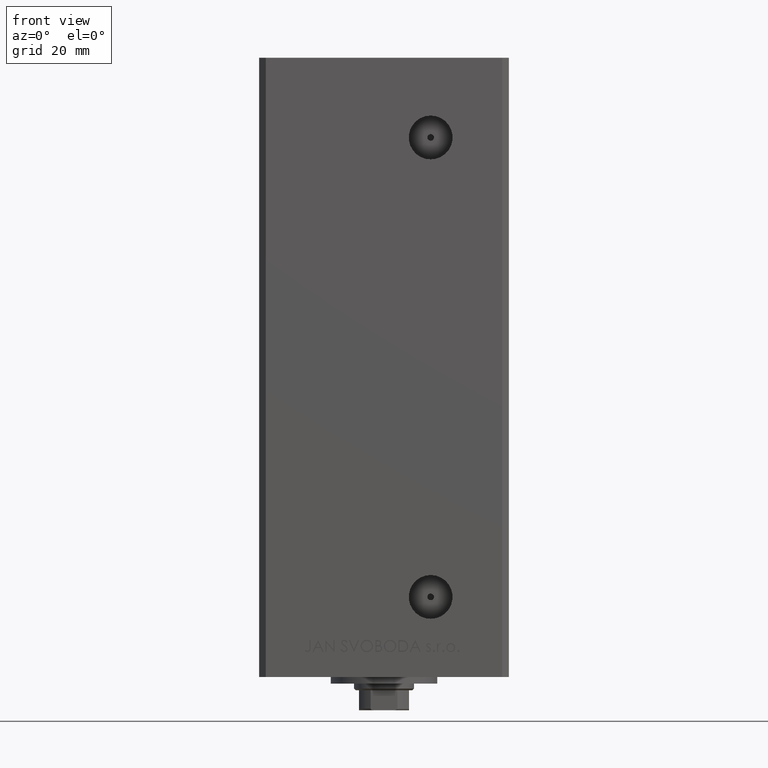
[diagram: clean part render]
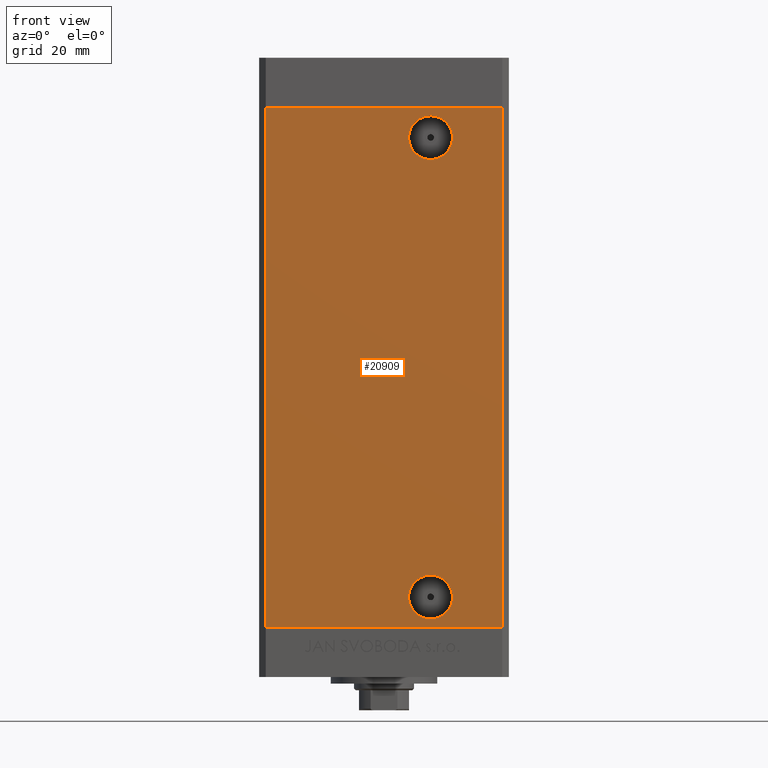
[diagram: same view with one face highlighted and labeled with its STEP entity id]
A machine part, front view. The second image highlights one B-rep face of the part: STEP entity #20909.
In plain terms, the highlighted planar face has unit normal (0, 1, 0).
Its self-contained STEP definition (entity closure, byte-faithful):
#135 = ORIENTED_EDGE ( 'NONE', *, *, #27253, .F. ) ;
#343 = EDGE_CURVE ( 'NONE', #30749, #41385, #29557, .T. ) ;
#912 = EDGE_LOOP ( 'NONE', ( #41120, #135 ) ) ;
#1077 = DIRECTION ( 'NONE',  ( -0.000000000000000000, 1.000000000000000000, -0.000000000000000000 ) ) ;
#1593 = VECTOR ( 'NONE', #24459, 1000.000000000000000 ) ;
#3749 = CARTESIAN_POINT ( 'NONE',  ( 13.99999999999999112, -32.50000000000000000, 9.000000000000007105 ) ) ;
#3975 = VECTOR ( 'NONE', #26338, 1000.000000000000000 ) ;
#4154 = DIRECTION ( 'NONE',  ( 0.000000000000000000, 0.000000000000000000, -1.000000000000000000 ) ) ;
#4648 = DIRECTION ( 'NONE',  ( 0.000000000000000000, -1.000000000000000000, 0.000000000000000000 ) ) ;
#6954 = AXIS2_PLACEMENT_3D ( 'NONE', #23757, #12418, #15191 ) ;
#7388 = EDGE_CURVE ( 'NONE', #32169, #26074, #32991, .T. ) ;
#8716 = ORIENTED_EDGE ( 'NONE', *, *, #343, .T. ) ;
#10592 = FACE_OUTER_BOUND ( 'NONE', #29655, .T. ) ;
#10918 = AXIS2_PLACEMENT_3D ( 'NONE', #20236, #4648, #4154 ) ;
#10981 = LINE ( 'NONE', #29873, #3975 ) ;
#11011 = DIRECTION ( 'NONE',  ( 1.000000000000000000, 0.000000000000000000, 0.000000000000000000 ) ) ;
#11515 = DIRECTION ( 'NONE',  ( 0.000000000000000000, 0.000000000000000000, -1.000000000000000000 ) ) ;
#11721 = CIRCLE ( 'NONE', #27784, 6.579999999999998295 ) ;
#12418 = DIRECTION ( 'NONE',  ( -0.000000000000000000, 1.000000000000000000, -0.000000000000000000 ) ) ;
#12841 = DIRECTION ( 'NONE',  ( 0.000000000000000000, 0.000000000000000000, -1.000000000000000000 ) ) ;
#13933 = CARTESIAN_POINT ( 'NONE',  ( -35.49999999999999289, -32.50000000000000000, 156.0000000000000000 ) ) ;
#14204 = ORIENTED_EDGE ( 'NONE', *, *, #7388, .F. ) ;
#14360 = CARTESIAN_POINT ( 'NONE',  ( -35.49999999999999289, -32.50000000000000000, 156.0000000000000000 ) ) ;
#14937 = CIRCLE ( 'NONE', #10918, 6.579999999999998295 ) ;
#15191 = DIRECTION ( 'NONE',  ( 0.000000000000000000, 0.000000000000000000, -1.000000000000000000 ) ) ;
#15395 = EDGE_LOOP ( 'NONE', ( #8716, #35080 ) ) ;
#15763 = CIRCLE ( 'NONE', #6954, 6.580000000000002736 ) ;
#16134 = CARTESIAN_POINT ( 'NONE',  ( 13.99999999999997513, -32.50000000000000000, 147.0000000000000000 ) ) ;
#17985 = CARTESIAN_POINT ( 'NONE',  ( 13.99999999999999112, -32.50000000000000000, 15.58000000000000718 ) ) ;
#18647 = FACE_BOUND ( 'NONE', #912, .T. ) ;
#18810 = VERTEX_POINT ( 'NONE', #17985 ) ;
#19640 = VERTEX_POINT ( 'NONE', #49127 ) ;
#20236 = CARTESIAN_POINT ( 'NONE',  ( 13.99999999999999112, -32.50000000000000000, 9.000000000000007105 ) ) ;
#20720 = AXIS2_PLACEMENT_3D ( 'NONE', #16134, #1077, #12841 ) ;
#20909 = ADVANCED_FACE ( 'NONE', ( #18647, #10592, #25955 ), #41260, .F. ) ;
#22893 = CARTESIAN_POINT ( 'NONE',  ( 35.49999999999999289, -32.50000000000000000, 0.000000000000000000 ) ) ;
#23757 = CARTESIAN_POINT ( 'NONE',  ( 13.99999999999997513, -32.50000000000000000, 147.0000000000000000 ) ) ;
#24459 = DIRECTION ( 'NONE',  ( -0.000000000000000000, -0.000000000000000000, -1.000000000000000000 ) ) ;
#24559 = CARTESIAN_POINT ( 'NONE',  ( 13.99999999999997513, -32.50000000000000000, 153.5799999999999841 ) ) ;
#25955 = FACE_BOUND ( 'NONE', #15395, .T. ) ;
#26074 = VERTEX_POINT ( 'NONE', #22893 ) ;
#26338 = DIRECTION ( 'NONE',  ( 1.000000000000000000, 0.000000000000000000, 0.000000000000000000 ) ) ;
#27253 = EDGE_CURVE ( 'NONE', #18810, #19640, #11721, .T. ) ;
#27316 = EDGE_CURVE ( 'NONE', #46671, #32169, #30885, .T. ) ;
#27784 = AXIS2_PLACEMENT_3D ( 'NONE', #3749, #49470, #11515 ) ;
#29557 = CIRCLE ( 'NONE', #20720, 6.580000000000002736 ) ;
#29655 = EDGE_LOOP ( 'NONE', ( #49721, #14204, #37858, #43174 ) ) ;
#29873 = CARTESIAN_POINT ( 'NONE',  ( -35.49999999999999289, -32.50000000000000000, 0.000000000000000000 ) ) ;
#30141 = CARTESIAN_POINT ( 'NONE',  ( 35.49999999999999289, -32.50000000000000000, 156.0000000000000000 ) ) ;
#30749 = VERTEX_POINT ( 'NONE', #49250 ) ;
#30885 = LINE ( 'NONE', #46195, #31805 ) ;
#31054 = EDGE_CURVE ( 'NONE', #41385, #30749, #15763, .T. ) ;
#31163 = EDGE_CURVE ( 'NONE', #19640, #18810, #14937, .T. ) ;
#31805 = VECTOR ( 'NONE', #11011, 1000.000000000000000 ) ;
#32169 = VERTEX_POINT ( 'NONE', #33891 ) ;
#32912 = CARTESIAN_POINT ( 'NONE',  ( -35.49999999999999289, -32.50000000000000000, 0.000000000000000000 ) ) ;
#32933 = VERTEX_POINT ( 'NONE', #32912 ) ;
#32991 = LINE ( 'NONE', #30141, #1593 ) ;
#33891 = CARTESIAN_POINT ( 'NONE',  ( 35.49999999999999289, -32.50000000000000000, 156.0000000000000000 ) ) ;
#34386 = VECTOR ( 'NONE', #43837, 1000.000000000000000 ) ;
#35080 = ORIENTED_EDGE ( 'NONE', *, *, #31054, .T. ) ;
#37228 = EDGE_CURVE ( 'NONE', #46671, #32933, #43597, .T. ) ;
#37743 = DIRECTION ( 'NONE',  ( 0.000000000000000000, 1.000000000000000000, 0.000000000000000000 ) ) ;
#37858 = ORIENTED_EDGE ( 'NONE', *, *, #27316, .F. ) ;
#39404 = EDGE_CURVE ( 'NONE', #32933, #26074, #10981, .T. ) ;
#40321 = CARTESIAN_POINT ( 'NONE',  ( -35.49999999999999289, -32.50000000000000000, 156.0000000000000000 ) ) ;
#41120 = ORIENTED_EDGE ( 'NONE', *, *, #31163, .F. ) ;
#41260 = PLANE ( 'NONE',  #47721 ) ;
#41385 = VERTEX_POINT ( 'NONE', #24559 ) ;
#43174 = ORIENTED_EDGE ( 'NONE', *, *, #37228, .T. ) ;
#43597 = LINE ( 'NONE', #40321, #34386 ) ;
#43837 = DIRECTION ( 'NONE',  ( -0.000000000000000000, -0.000000000000000000, -1.000000000000000000 ) ) ;
#46195 = CARTESIAN_POINT ( 'NONE',  ( -35.49999999999999289, -32.50000000000000000, 156.0000000000000000 ) ) ;
#46671 = VERTEX_POINT ( 'NONE', #13933 ) ;
#47721 = AXIS2_PLACEMENT_3D ( 'NONE', #14360, #37743, #49535 ) ;
#49127 = CARTESIAN_POINT ( 'NONE',  ( 13.99999999999999112, -32.50000000000000000, 2.420000000000009699 ) ) ;
#49250 = CARTESIAN_POINT ( 'NONE',  ( 13.99999999999997513, -32.50000000000000000, 140.4199999999999875 ) ) ;
#49470 = DIRECTION ( 'NONE',  ( 0.000000000000000000, -1.000000000000000000, 0.000000000000000000 ) ) ;
#49535 = DIRECTION ( 'NONE',  ( 0.000000000000000000, -0.000000000000000000, 1.000000000000000000 ) ) ;
#49721 = ORIENTED_EDGE ( 'NONE', *, *, #39404, .T. ) ;